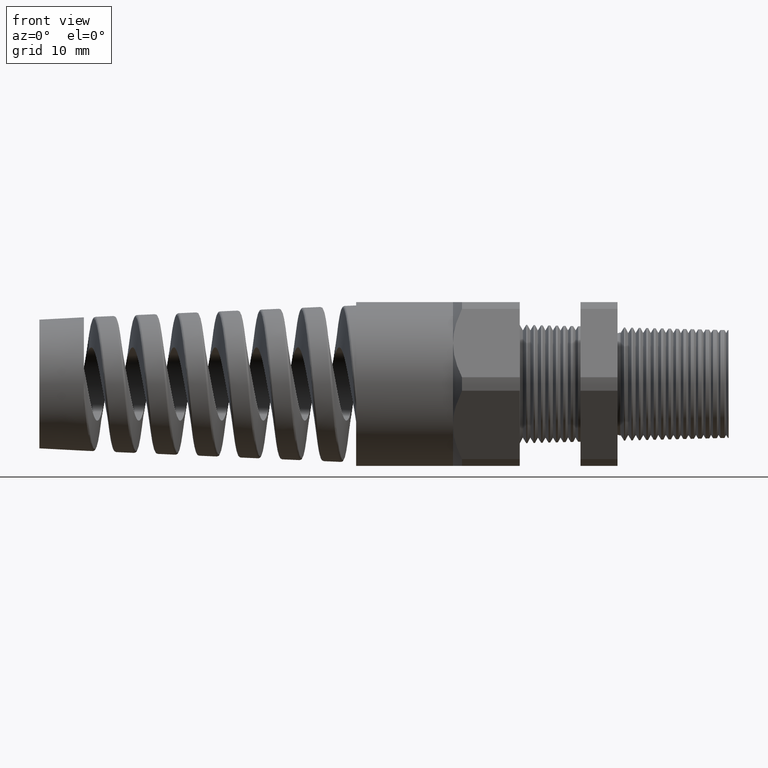
[diagram: clean part render]
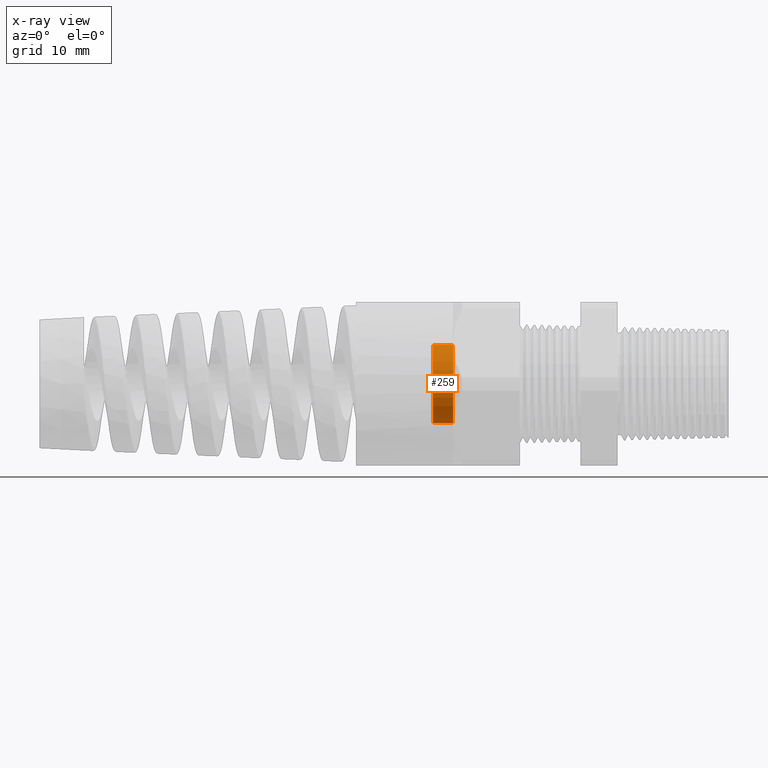
[diagram: x-ray — body ghosted, one internal face saturated and labeled with its STEP entity id]
A machine part, front view, then the same camera in x-ray: the body is ghosted and one INTERNAL B-rep face — a face not visible from any outside direction — is saturated and labeled: STEP entity #259.
In plain terms, the highlighted cylindrical surface (partial cylindrical patch) has radius 5.2674 mm, axis along (1, -0, -0).
Its self-contained STEP definition (entity closure, byte-faithful):
#159 = ORIENTED_EDGE ( 'NONE', *, *, #392, .T. ) ;
#167 = EDGE_LOOP ( 'NONE', ( #295, #159, #386, #296 ) ) ;
#180 = VERTEX_POINT ( 'NONE', #14110 ) ;
#184 = VERTEX_POINT ( 'NONE', #14109 ) ;
#225 = VERTEX_POINT ( 'NONE', #14108 ) ;
#259 = ADVANCED_FACE ( 'NONE', ( #14105 ), #14103, .F. ) ;
#291 = EDGE_CURVE ( 'NONE', #180, #293, #14200, .T. ) ;
#293 = VERTEX_POINT ( 'NONE', #14196 ) ;
#295 = ORIENTED_EDGE ( 'NONE', *, *, #398, .T. ) ;
#296 = ORIENTED_EDGE ( 'NONE', *, *, #291, .F. ) ;
#386 = ORIENTED_EDGE ( 'NONE', *, *, #391, .T. ) ;
#391 = EDGE_CURVE ( 'NONE', #184, #293, #14186, .T. ) ;
#392 = EDGE_CURVE ( 'NONE', #225, #184, #14181, .T. ) ;
#398 = EDGE_CURVE ( 'NONE', #180, #225, #14230, .T. ) ;
#14100 = DIRECTION ( 'NONE',  ( 0.0000000000000000000, 0.0000000000000000000, -1.000000000000000000 ) ) ;
#14101 = DIRECTION ( 'NONE',  ( 1.000000000000000000, -0.0000000000000000000, -0.0000000000000000000 ) ) ;
#14102 = AXIS2_PLACEMENT_3D ( 'NONE', #14104, #14101, #14100 ) ;
#14103 = CYLINDRICAL_SURFACE ( 'NONE', #14102, 0.2073797903818203600 ) ;
#14104 = CARTESIAN_POINT ( 'NONE',  ( -1.697947509874504300, 0.0000000000000000000, 0.0000000000000000000 ) ) ;
#14105 = FACE_OUTER_BOUND ( 'NONE', #167, .T. ) ;
#14108 = CARTESIAN_POINT ( 'NONE',  ( -1.289999999999999600, 2.539669964989453800E-017, 0.2073797903818203600 ) ) ;
#14109 = CARTESIAN_POINT ( 'NONE',  ( -1.183700787401574600, 2.539669964989453800E-017, 0.2073797903818203600 ) ) ;
#14110 = CARTESIAN_POINT ( 'NONE',  ( -1.289999999999999600, 0.0000000000000000000, -0.2073797903818203600 ) ) ;
#14178 = DIRECTION ( 'NONE',  ( 1.000000000000000000, -0.0000000000000000000, -0.0000000000000000000 ) ) ;
#14179 = VECTOR ( 'NONE', #14178, 39.37007874015748100 ) ;
#14180 = CARTESIAN_POINT ( 'NONE',  ( -1.697947509874504300, 2.539669964989453800E-017, 0.2073797903818203600 ) ) ;
#14181 = LINE ( 'NONE', #14180, #14179 ) ;
#14182 = DIRECTION ( 'NONE',  ( 0.0000000000000000000, 0.0000000000000000000, 1.000000000000000000 ) ) ;
#14183 = DIRECTION ( 'NONE',  ( 1.000000000000000000, -0.0000000000000000000, -0.0000000000000000000 ) ) ;
#14184 = CARTESIAN_POINT ( 'NONE',  ( -1.183700787401574600, 0.0000000000000000000, 0.0000000000000000000 ) ) ;
#14185 = AXIS2_PLACEMENT_3D ( 'NONE', #14184, #14183, #14182 ) ;
#14186 = CIRCLE ( 'NONE', #14185, 0.2073797903818203600 ) ;
#14196 = CARTESIAN_POINT ( 'NONE',  ( -1.183700787401574600, 0.0000000000000000000, -0.2073797903818203600 ) ) ;
#14197 = DIRECTION ( 'NONE',  ( 1.000000000000000000, -0.0000000000000000000, -0.0000000000000000000 ) ) ;
#14198 = VECTOR ( 'NONE', #14197, 39.37007874015748100 ) ;
#14199 = CARTESIAN_POINT ( 'NONE',  ( -1.697947509874504300, 0.0000000000000000000, -0.2073797903818203600 ) ) ;
#14200 = LINE ( 'NONE', #14199, #14198 ) ;
#14222 = DIRECTION ( 'NONE',  ( 0.0000000000000000000, 0.0000000000000000000, -1.000000000000000000 ) ) ;
#14223 = DIRECTION ( 'NONE',  ( -1.000000000000000000, 0.0000000000000000000, 0.0000000000000000000 ) ) ;
#14224 = CARTESIAN_POINT ( 'NONE',  ( -1.289999999999999600, 0.0000000000000000000, 0.0000000000000000000 ) ) ;
#14225 = AXIS2_PLACEMENT_3D ( 'NONE', #14224, #14223, #14222 ) ;
#14230 = CIRCLE ( 'NONE', #14225, 0.2073797903818203600 ) ;